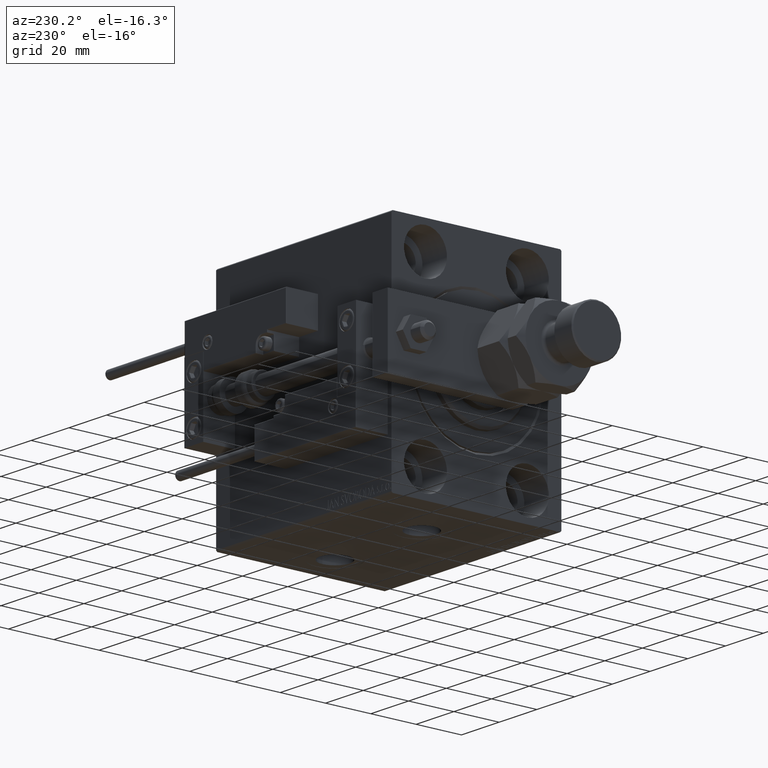
[diagram: clean part render]
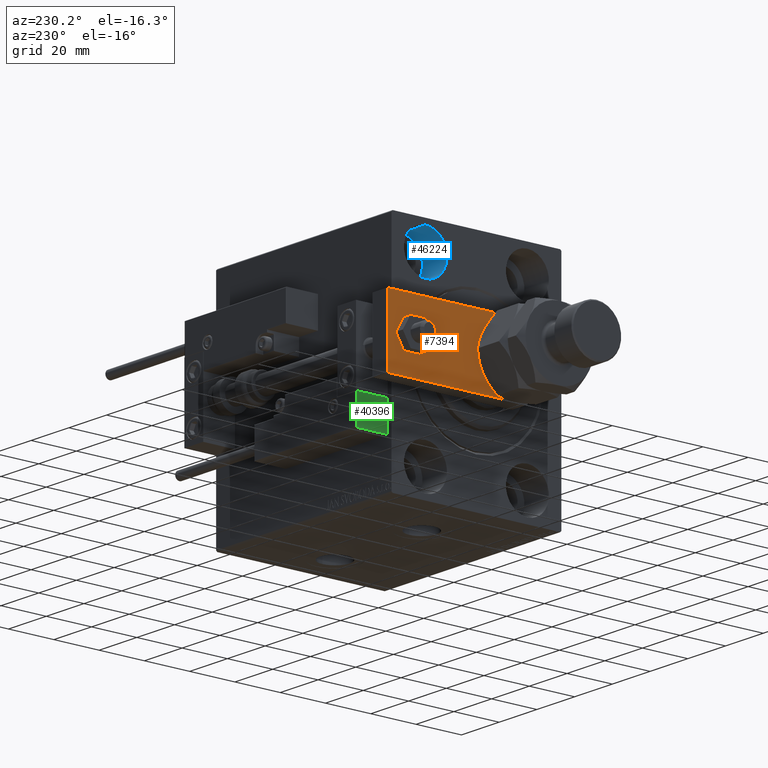
[diagram: same view with three faces highlighted in distinct colors, each labeled with its STEP entity id]
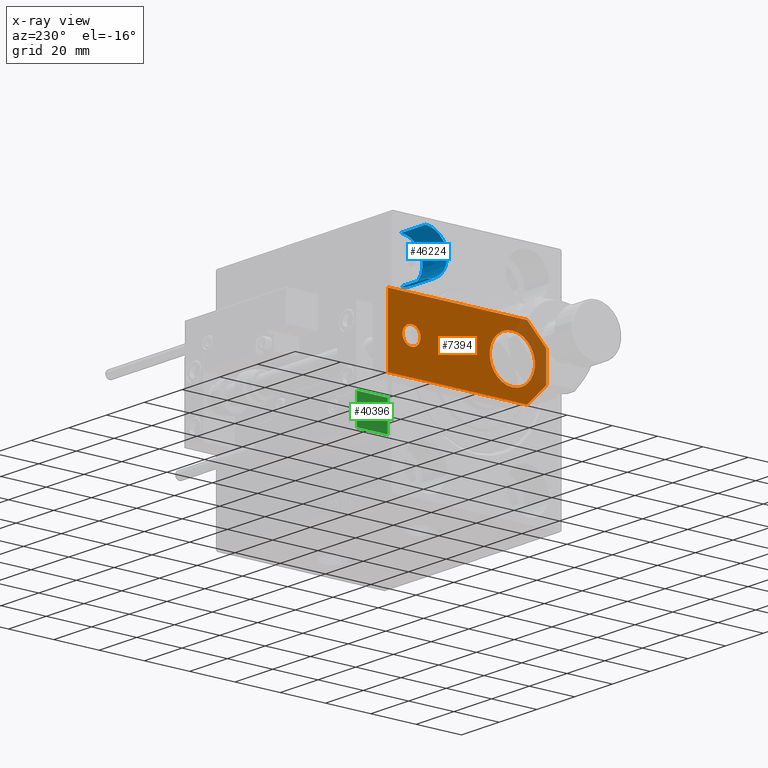
[diagram: x-ray of the same camera — body ghosted, the three highlighted faces saturated]
A machine part, auxiliary view with three faces highlighted in distinct colors.
The next image is the same camera in x-ray (body ghosted, the three faces saturated) — at least one of them is partly hidden behind the body in this view.
Their STEP definitions:

[orange] entity #7394 — the highlighted planar face has unit normal (-1, 0, 0).
#296 = DIRECTION ( 'NONE',  ( -1.000000000000000000, 0.000000000000000000, 0.000000000000000000 ) ) ;
#553 = EDGE_CURVE ( 'NONE', #29699, #49861, #28478, .T. ) ;
#1113 = CARTESIAN_POINT ( 'NONE',  ( -6.499999999999993783, 0.000000000000000000, 8.000000000000000000 ) ) ;
#1743 = CARTESIAN_POINT ( 'NONE',  ( -14.99999999999999822, 70.00000000000000000, 8.000000000000000000 ) ) ;
#3093 = CARTESIAN_POINT ( 'NONE',  ( 10.00000000000000178, 15.00000000000001243, 8.000000000000000000 ) ) ;
#3170 = VERTEX_POINT ( 'NONE', #1113 ) ;
#3216 = CARTESIAN_POINT ( 'NONE',  ( -3.250000000000003553, -3.249999999999996891, 8.000000000000000000 ) ) ;
#3496 = DIRECTION ( 'NONE',  ( 1.000000000000000000, 0.000000000000000000, 0.000000000000000000 ) ) ;
#5295 = CIRCLE ( 'NONE', #10418, 10.00000000000000178 ) ;
#5855 = EDGE_CURVE ( 'NONE', #12255, #40969, #27216, .T. ) ;
#5869 = EDGE_LOOP ( 'NONE', ( #8520, #32706 ) ) ;
#7282 = VECTOR ( 'NONE', #34761, 1000.000000000000000 ) ;
#7394 = ADVANCED_FACE ( 'NONE', ( #12032, #45083, #48854 ), #11771, .T. ) ;
#8520 = ORIENTED_EDGE ( 'NONE', *, *, #553, .F. ) ;
#8723 = ORIENTED_EDGE ( 'NONE', *, *, #5855, .T. ) ;
#9262 = DIRECTION ( 'NONE',  ( 0.000000000000000000, 0.000000000000000000, 1.000000000000000000 ) ) ;
#9939 = CIRCLE ( 'NONE', #33075, 4.000000000000000888 ) ;
#10019 = DIRECTION ( 'NONE',  ( 1.000000000000000000, 0.000000000000000000, 0.000000000000000000 ) ) ;
#10418 = AXIS2_PLACEMENT_3D ( 'NONE', #33757, #25945, #50180 ) ;
#11614 = CARTESIAN_POINT ( 'NONE',  ( 15.00000000000000355, 0.000000000000000000, 8.000000000000000000 ) ) ;
#11771 = PLANE ( 'NONE',  #47695 ) ;
#11845 = VECTOR ( 'NONE', #20063, 1000.000000000000114 ) ;
#12032 = FACE_BOUND ( 'NONE', #52400, .T. ) ;
#12255 = VERTEX_POINT ( 'NONE', #13539 ) ;
#12795 = ORIENTED_EDGE ( 'NONE', *, *, #40444, .T. ) ;
#12941 = CARTESIAN_POINT ( 'NONE',  ( -4.000000000000000888, 59.50000000000001421, 8.000000000000000000 ) ) ;
#13539 = CARTESIAN_POINT ( 'NONE',  ( -14.99999999999999822, 70.00000000000000000, 8.000000000000000000 ) ) ;
#14500 = CARTESIAN_POINT ( 'NONE',  ( -10.00000000000000178, 15.00000000000001066, 8.000000000000000000 ) ) ;
#15428 = CARTESIAN_POINT ( 'NONE',  ( 6.499999999999974243, 0.000000000000000000, 8.000000000000000000 ) ) ;
#15838 = CARTESIAN_POINT ( 'NONE',  ( -9.629649721936179265E-32, 15.00000000000001066, 8.000000000000000000 ) ) ;
#16614 = DIRECTION ( 'NONE',  ( 0.7071067811865467956, -0.7071067811865483499, 0.000000000000000000 ) ) ;
#18243 = CIRCLE ( 'NONE', #48257, 4.000000000000000888 ) ;
#18373 = ORIENTED_EDGE ( 'NONE', *, *, #22499, .F. ) ;
#19933 = AXIS2_PLACEMENT_3D ( 'NONE', #15838, #24410, #3496 ) ;
#20063 = DIRECTION ( 'NONE',  ( 0.7071067811865483499, 0.7071067811865465735, -0.000000000000000000 ) ) ;
#20069 = DIRECTION ( 'NONE',  ( 1.000000000000000000, 0.000000000000000000, 0.000000000000000000 ) ) ;
#20826 = EDGE_CURVE ( 'NONE', #40969, #3170, #52652, .T. ) ;
#22241 = EDGE_CURVE ( 'NONE', #3170, #30404, #46834, .T. ) ;
#22499 = EDGE_CURVE ( 'NONE', #34611, #46197, #18243, .T. ) ;
#24410 = DIRECTION ( 'NONE',  ( 0.000000000000000000, 0.000000000000000000, 1.000000000000000000 ) ) ;
#24482 = CARTESIAN_POINT ( 'NONE',  ( 15.00000000000000000, 70.00000000000000000, 8.000000000000000000 ) ) ;
#25945 = DIRECTION ( 'NONE',  ( 0.000000000000000000, 0.000000000000000000, 1.000000000000000000 ) ) ;
#26451 = CARTESIAN_POINT ( 'NONE',  ( 15.00000000000000355, 8.500000000000007105, 8.000000000000000000 ) ) ;
#26785 = VECTOR ( 'NONE', #10019, 1000.000000000000000 ) ;
#27216 = LINE ( 'NONE', #1743, #7282 ) ;
#27616 = CARTESIAN_POINT ( 'NONE',  ( -1.432611055310774642E-16, 59.50000000000001421, 8.000000000000000000 ) ) ;
#27776 = ORIENTED_EDGE ( 'NONE', *, *, #22241, .T. ) ;
#27817 = CARTESIAN_POINT ( 'NONE',  ( -15.00000000000000355, 8.500000000000028422, 8.000000000000000000 ) ) ;
#27902 = ORIENTED_EDGE ( 'NONE', *, *, #48157, .T. ) ;
#28127 = CARTESIAN_POINT ( 'NONE',  ( 3.249999999999979128, -3.249999999999987121, 8.000000000000000000 ) ) ;
#28478 = CIRCLE ( 'NONE', #19933, 10.00000000000000178 ) ;
#29651 = EDGE_CURVE ( 'NONE', #46197, #34611, #9939, .T. ) ;
#29699 = VERTEX_POINT ( 'NONE', #14500 ) ;
#30404 = VERTEX_POINT ( 'NONE', #15428 ) ;
#30938 = CARTESIAN_POINT ( 'NONE',  ( -15.00000000000000355, 0.000000000000000000, 8.000000000000000000 ) ) ;
#32706 = ORIENTED_EDGE ( 'NONE', *, *, #38686, .F. ) ;
#33040 = LINE ( 'NONE', #45964, #34513 ) ;
#33075 = AXIS2_PLACEMENT_3D ( 'NONE', #46082, #9262, #46333 ) ;
#33251 = EDGE_LOOP ( 'NONE', ( #8723, #48209, #27776, #46978, #27902, #12795 ) ) ;
#33613 = VECTOR ( 'NONE', #16614, 1000.000000000000000 ) ;
#33757 = CARTESIAN_POINT ( 'NONE',  ( -9.629649721936179265E-32, 15.00000000000001066, 8.000000000000000000 ) ) ;
#34513 = VECTOR ( 'NONE', #296, 1000.000000000000000 ) ;
#34611 = VERTEX_POINT ( 'NONE', #12941 ) ;
#34761 = DIRECTION ( 'NONE',  ( -7.434529182757744162E-17, -1.000000000000000000, 0.000000000000000000 ) ) ;
#36982 = LINE ( 'NONE', #28127, #11845 ) ;
#37361 = VECTOR ( 'NONE', #44405, 1000.000000000000000 ) ;
#38142 = EDGE_CURVE ( 'NONE', #30404, #45109, #36982, .T. ) ;
#38686 = EDGE_CURVE ( 'NONE', #49861, #29699, #5295, .T. ) ;
#40444 = EDGE_CURVE ( 'NONE', #46580, #12255, #33040, .T. ) ;
#40779 = DIRECTION ( 'NONE',  ( -0.000000000000000000, 0.000000000000000000, 1.000000000000000000 ) ) ;
#40969 = VERTEX_POINT ( 'NONE', #27817 ) ;
#42924 = ORIENTED_EDGE ( 'NONE', *, *, #29651, .F. ) ;
#44405 = DIRECTION ( 'NONE',  ( -4.956352788505162775E-17, 1.000000000000000000, 0.000000000000000000 ) ) ;
#44481 = CARTESIAN_POINT ( 'NONE',  ( 4.000000000000000888, 59.50000000000001421, 8.000000000000000000 ) ) ;
#45083 = FACE_OUTER_BOUND ( 'NONE', #33251, .T. ) ;
#45109 = VERTEX_POINT ( 'NONE', #26451 ) ;
#45964 = CARTESIAN_POINT ( 'NONE',  ( 15.00000000000000000, 70.00000000000000000, 8.000000000000000000 ) ) ;
#46082 = CARTESIAN_POINT ( 'NONE',  ( -1.432611055310774642E-16, 59.50000000000001421, 8.000000000000000000 ) ) ;
#46197 = VERTEX_POINT ( 'NONE', #44481 ) ;
#46333 = DIRECTION ( 'NONE',  ( 1.000000000000000000, 0.000000000000000000, 0.000000000000000000 ) ) ;
#46580 = VERTEX_POINT ( 'NONE', #24482 ) ;
#46834 = LINE ( 'NONE', #30938, #26785 ) ;
#46978 = ORIENTED_EDGE ( 'NONE', *, *, #38142, .T. ) ;
#47695 = AXIS2_PLACEMENT_3D ( 'NONE', #52625, #40779, #20069 ) ;
#47833 = DIRECTION ( 'NONE',  ( 1.000000000000000000, 0.000000000000000000, 0.000000000000000000 ) ) ;
#48088 = DIRECTION ( 'NONE',  ( 0.000000000000000000, 0.000000000000000000, 1.000000000000000000 ) ) ;
#48157 = EDGE_CURVE ( 'NONE', #45109, #46580, #48427, .T. ) ;
#48209 = ORIENTED_EDGE ( 'NONE', *, *, #20826, .T. ) ;
#48257 = AXIS2_PLACEMENT_3D ( 'NONE', #27616, #48088, #47833 ) ;
#48427 = LINE ( 'NONE', #11614, #37361 ) ;
#48854 = FACE_BOUND ( 'NONE', #5869, .T. ) ;
#49861 = VERTEX_POINT ( 'NONE', #3093 ) ;
#50180 = DIRECTION ( 'NONE',  ( 1.000000000000000000, 0.000000000000000000, 0.000000000000000000 ) ) ;
#52400 = EDGE_LOOP ( 'NONE', ( #18373, #42924 ) ) ;
#52625 = CARTESIAN_POINT ( 'NONE',  ( 0.000000000000000000, 0.000000000000000000, 8.000000000000000000 ) ) ;
#52652 = LINE ( 'NONE', #3216, #33613 ) ;

[blue] entity #46224 — the highlighted cylindrical surface (edge-blend (fillet) strip) has radius 9.5 mm, axis along (-1, -0, -0).
#750 = EDGE_CURVE ( 'NONE', #37951, #37743, #16806, .T. ) ;
#1289 = AXIS2_PLACEMENT_3D ( 'NONE', #16235, #24018, #20768 ) ;
#2428 = EDGE_CURVE ( 'NONE', #10802, #25064, #40022, .T. ) ;
#4511 = VECTOR ( 'NONE', #8489, 1000.000000000000000 ) ;
#5214 = ORIENTED_EDGE ( 'NONE', *, *, #750, .T. ) ;
#5396 = DIRECTION ( 'NONE',  ( 0.000000000000000000, 0.000000000000000000, 1.000000000000000000 ) ) ;
#7674 = EDGE_LOOP ( 'NONE', ( #11671, #5214, #39535, #17618 ) ) ;
#7929 = FACE_OUTER_BOUND ( 'NONE', #7674, .T. ) ;
#8489 = DIRECTION ( 'NONE',  ( -1.000000000000000000, -0.000000000000000000, -0.000000000000000000 ) ) ;
#9694 = CARTESIAN_POINT ( 'NONE',  ( 13.00000000000000000, 22.50000000000000355, 47.49999999999999289 ) ) ;
#10802 = VERTEX_POINT ( 'NONE', #9694 ) ;
#11395 = EDGE_CURVE ( 'NONE', #37743, #25064, #30233, .T. ) ;
#11671 = ORIENTED_EDGE ( 'NONE', *, *, #30645, .F. ) ;
#15861 = CARTESIAN_POINT ( 'NONE',  ( 0.000000000000000000, 22.50000000000000355, 47.49999999999999289 ) ) ;
#16235 = CARTESIAN_POINT ( 'NONE',  ( 13.00000000000000000, 22.50000000000000355, 37.99999999999999289 ) ) ;
#16806 = LINE ( 'NONE', #41531, #4511 ) ;
#16841 = CIRCLE ( 'NONE', #20267, 9.500000000000001776 ) ;
#17618 = ORIENTED_EDGE ( 'NONE', *, *, #2428, .F. ) ;
#18991 = CARTESIAN_POINT ( 'NONE',  ( 13.00000000000000000, 22.50000000000000355, 28.49999999999998934 ) ) ;
#20267 = AXIS2_PLACEMENT_3D ( 'NONE', #38423, #28543, #5396 ) ;
#20768 = DIRECTION ( 'NONE',  ( 0.000000000000000000, 0.000000000000000000, 1.000000000000000000 ) ) ;
#24018 = DIRECTION ( 'NONE',  ( -1.000000000000000000, -0.000000000000000000, -0.000000000000000000 ) ) ;
#25064 = VERTEX_POINT ( 'NONE', #15861 ) ;
#28543 = DIRECTION ( 'NONE',  ( -1.000000000000000000, 0.000000000000000000, 0.000000000000000000 ) ) ;
#30233 = CIRCLE ( 'NONE', #37105, 9.500000000000001776 ) ;
#30645 = EDGE_CURVE ( 'NONE', #37951, #10802, #16841, .T. ) ;
#32083 = CYLINDRICAL_SURFACE ( 'NONE', #1289, 9.500000000000001776 ) ;
#37105 = AXIS2_PLACEMENT_3D ( 'NONE', #45067, #49631, #44798 ) ;
#37743 = VERTEX_POINT ( 'NONE', #48172 ) ;
#37951 = VERTEX_POINT ( 'NONE', #18991 ) ;
#38423 = CARTESIAN_POINT ( 'NONE',  ( 13.00000000000000000, 22.50000000000000355, 37.99999999999999289 ) ) ;
#39535 = ORIENTED_EDGE ( 'NONE', *, *, #11395, .T. ) ;
#40022 = LINE ( 'NONE', #47566, #50076 ) ;
#41531 = CARTESIAN_POINT ( 'NONE',  ( 13.00000000000000000, 22.50000000000000355, 28.49999999999998934 ) ) ;
#43789 = DIRECTION ( 'NONE',  ( -1.000000000000000000, -0.000000000000000000, -0.000000000000000000 ) ) ;
#44798 = DIRECTION ( 'NONE',  ( 0.000000000000000000, 0.000000000000000000, 1.000000000000000000 ) ) ;
#45067 = CARTESIAN_POINT ( 'NONE',  ( 0.000000000000000000, 22.50000000000000355, 37.99999999999999289 ) ) ;
#46224 = ADVANCED_FACE ( 'NONE', ( #7929 ), #32083, .F. ) ;
#47566 = CARTESIAN_POINT ( 'NONE',  ( 13.00000000000000000, 22.50000000000000355, 47.49999999999999289 ) ) ;
#48172 = CARTESIAN_POINT ( 'NONE',  ( 0.000000000000000000, 22.50000000000000355, 28.49999999999998934 ) ) ;
#49631 = DIRECTION ( 'NONE',  ( -1.000000000000000000, 0.000000000000000000, 0.000000000000000000 ) ) ;
#50076 = VECTOR ( 'NONE', #43789, 1000.000000000000000 ) ;

[green] entity #40396 — the highlighted planar face has unit normal (1, 0, -0).
#718 = VERTEX_POINT ( 'NONE', #48543 ) ;
#982 = LINE ( 'NONE', #13326, #20303 ) ;
#3275 = DIRECTION ( 'NONE',  ( 1.000000000000000000, -8.006416042969869188E-16, 0.000000000000000000 ) ) ;
#3388 = CARTESIAN_POINT ( 'NONE',  ( -26.99999999999993605, 20.00000000000002132, 0.000000000000000000 ) ) ;
#3716 = EDGE_CURVE ( 'NONE', #6385, #24590, #11435, .T. ) ;
#5412 = DIRECTION ( 'NONE',  ( 8.006416042969869188E-16, 1.000000000000000000, -0.000000000000000000 ) ) ;
#5685 = LINE ( 'NONE', #37891, #12651 ) ;
#6385 = VERTEX_POINT ( 'NONE', #35484 ) ;
#8779 = DIRECTION ( 'NONE',  ( -0.000000000000000000, -0.000000000000000000, -1.000000000000000000 ) ) ;
#11435 = LINE ( 'NONE', #3388, #31213 ) ;
#12344 = VECTOR ( 'NONE', #21593, 1000.000000000000000 ) ;
#12651 = VECTOR ( 'NONE', #5412, 1000.000000000000000 ) ;
#13326 = CARTESIAN_POINT ( 'NONE',  ( -26.99999999999994671, 7.000000000000005329, 14.00000000000000000 ) ) ;
#19902 = AXIS2_PLACEMENT_3D ( 'NONE', #20157, #3275, #48413 ) ;
#20157 = CARTESIAN_POINT ( 'NONE',  ( -26.99999999999993605, 20.00000000000002132, 14.00000000000000000 ) ) ;
#20303 = VECTOR ( 'NONE', #8779, 1000.000000000000000 ) ;
#21593 = DIRECTION ( 'NONE',  ( -0.000000000000000000, -0.000000000000000000, -1.000000000000000000 ) ) ;
#24590 = VERTEX_POINT ( 'NONE', #29907 ) ;
#25145 = CARTESIAN_POINT ( 'NONE',  ( -26.99999999999994671, 7.000000000000005329, 13.70000000000000107 ) ) ;
#25588 = EDGE_CURVE ( 'NONE', #718, #6385, #25622, .T. ) ;
#25622 = LINE ( 'NONE', #42045, #12344 ) ;
#28832 = EDGE_LOOP ( 'NONE', ( #38298, #48811, #42794, #50146 ) ) ;
#29907 = CARTESIAN_POINT ( 'NONE',  ( -26.99999999999994671, 7.000000000000005329, 0.000000000000000000 ) ) ;
#31213 = VECTOR ( 'NONE', #48526, 1000.000000000000000 ) ;
#31928 = EDGE_CURVE ( 'NONE', #37209, #24590, #982, .T. ) ;
#35484 = CARTESIAN_POINT ( 'NONE',  ( -26.99999999999993605, 20.00000000000002132, 0.000000000000000000 ) ) ;
#36706 = EDGE_CURVE ( 'NONE', #37209, #718, #5685, .T. ) ;
#37209 = VERTEX_POINT ( 'NONE', #25145 ) ;
#37891 = CARTESIAN_POINT ( 'NONE',  ( -26.99999999999993605, 20.00000000000002132, 13.70000000000000107 ) ) ;
#38298 = ORIENTED_EDGE ( 'NONE', *, *, #31928, .F. ) ;
#40396 = ADVANCED_FACE ( 'NONE', ( #44387 ), #44109, .F. ) ;
#42045 = CARTESIAN_POINT ( 'NONE',  ( -26.99999999999993605, 20.00000000000002132, 14.00000000000000000 ) ) ;
#42794 = ORIENTED_EDGE ( 'NONE', *, *, #25588, .T. ) ;
#44109 = PLANE ( 'NONE',  #19902 ) ;
#44387 = FACE_OUTER_BOUND ( 'NONE', #28832, .T. ) ;
#48413 = DIRECTION ( 'NONE',  ( 8.006416042969869188E-16, 1.000000000000000000, 0.000000000000000000 ) ) ;
#48526 = DIRECTION ( 'NONE',  ( -8.006416042969869188E-16, -1.000000000000000000, 0.000000000000000000 ) ) ;
#48543 = CARTESIAN_POINT ( 'NONE',  ( -26.99999999999993605, 20.00000000000002132, 13.70000000000000107 ) ) ;
#48811 = ORIENTED_EDGE ( 'NONE', *, *, #36706, .T. ) ;
#50146 = ORIENTED_EDGE ( 'NONE', *, *, #3716, .T. ) ;